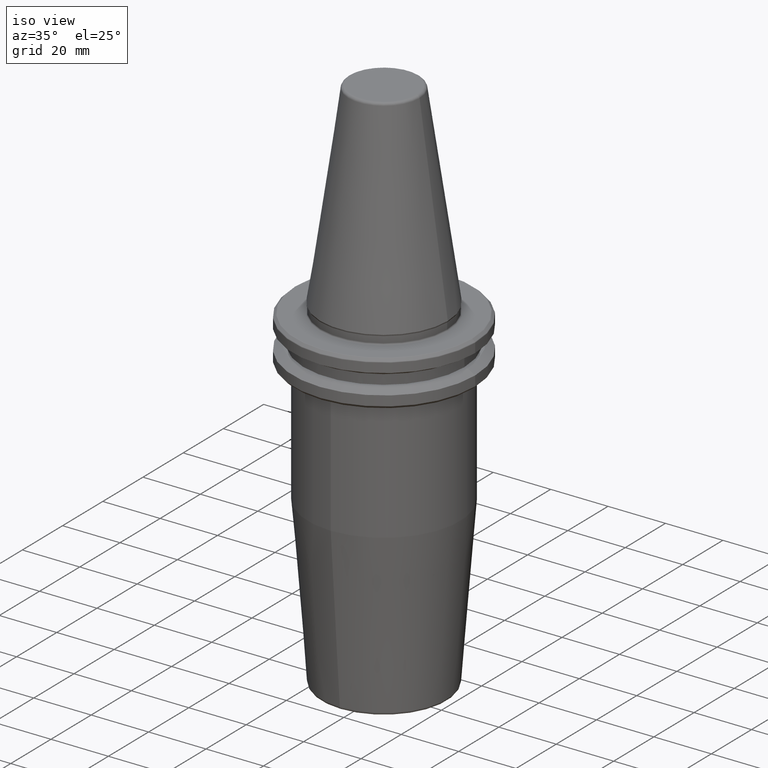
[diagram: clean part render]
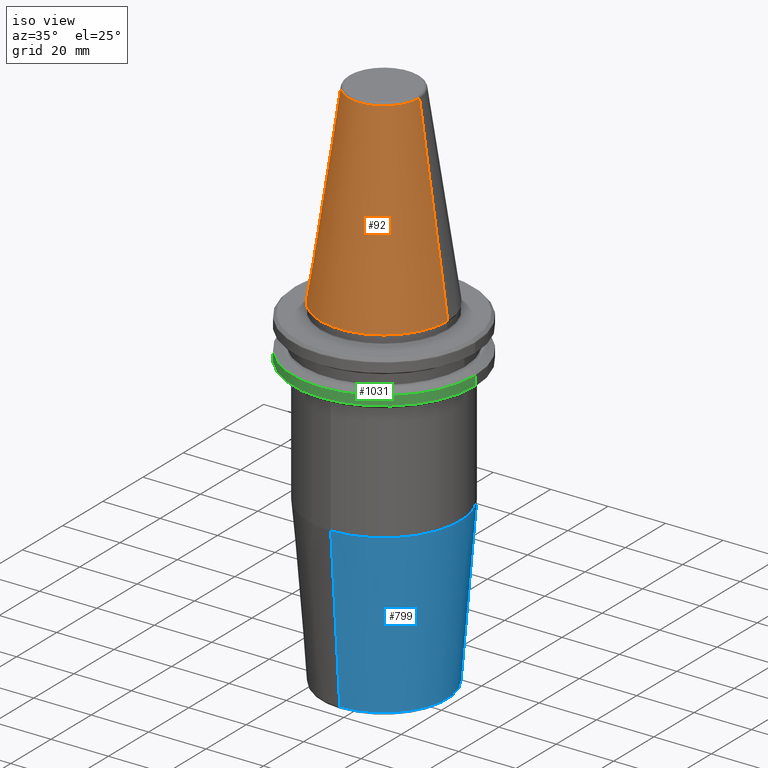
[diagram: same view with three faces highlighted in distinct colors, each labeled with its STEP entity id]
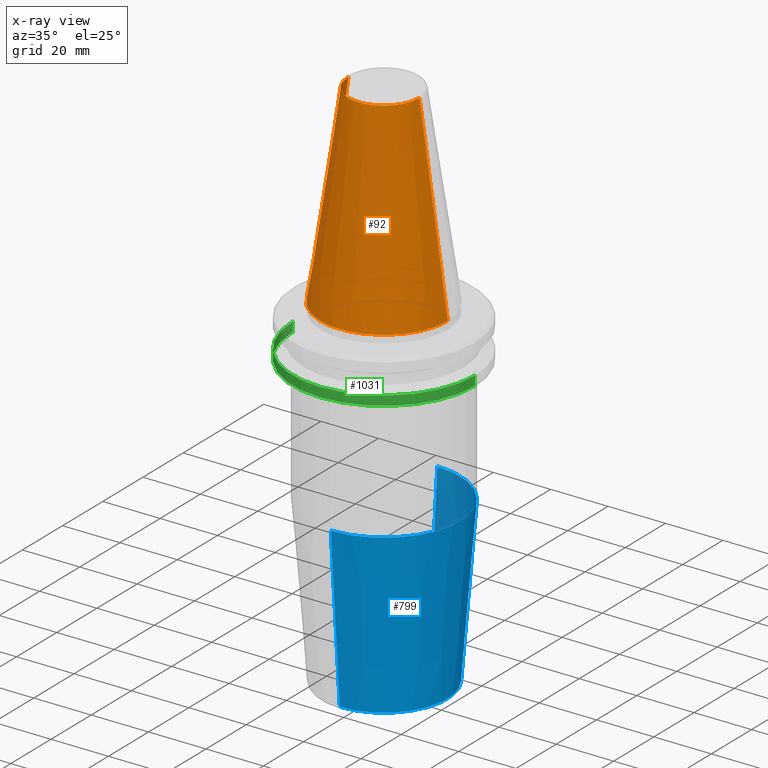
[diagram: x-ray of the same camera — body ghosted, the three highlighted faces saturated]
A machine part, iso view with three faces highlighted in distinct colors.
The next image is the same camera in x-ray (body ghosted, the three faces saturated) — at least one of them is partly hidden behind the body in this view.
Their STEP definitions:

[orange] entity #92 — the highlighted conical surface has half-angle 8.297 deg.
#43 = VERTEX_POINT ( 'NONE', #112 ) ;
#44 = CARTESIAN_POINT ( 'NONE',  ( 12.37469537611110800, 1.515463108277802100E-015, 67.54430822726729400 ) ) ;
#70 = DIRECTION ( 'NONE',  ( 1.000000000000000000, 0.0000000000000000000, 0.0000000000000000000 ) ) ;
#72 = EDGE_CURVE ( 'NONE', #43, #326, #867, .T. ) ;
#92 = ADVANCED_FACE ( 'NONE', ( #250 ), #214, .T. ) ;
#110 = DIRECTION ( 'NONE',  ( 0.1443082272673071000, 1.767266086135364600E-017, -0.9895327864921743500 ) ) ;
#112 = CARTESIAN_POINT ( 'NONE',  ( -22.22500000000000500, 2.721777511104993200E-015, 0.0000000000000000000 ) ) ;
#113 = EDGE_CURVE ( 'NONE', #951, #43, #491, .T. ) ;
#120 = ORIENTED_EDGE ( 'NONE', *, *, #113, .T. ) ;
#166 = EDGE_CURVE ( 'NONE', #1219, #326, #721, .T. ) ;
#191 = EDGE_LOOP ( 'NONE', ( #960, #607, #120, #563 ) ) ;
#214 = CONICAL_SURFACE ( 'NONE', #422, 12.37469537611110800, 0.1448138465474191100 ) ;
#240 = CARTESIAN_POINT ( 'NONE',  ( -12.37469537611110800, 0.0000000000000000000, 67.54430822726729400 ) ) ;
#250 = FACE_OUTER_BOUND ( 'NONE', #191, .T. ) ;
#252 = EDGE_CURVE ( 'NONE', #951, #1219, #868, .T. ) ;
#299 = AXIS2_PLACEMENT_3D ( 'NONE', #656, #717, #70 ) ;
#326 = VERTEX_POINT ( 'NONE', #399 ) ;
#399 = CARTESIAN_POINT ( 'NONE',  ( 22.22500000000000500, 0.0000000000000000000, 0.0000000000000000000 ) ) ;
#422 = AXIS2_PLACEMENT_3D ( 'NONE', #576, #773, #461 ) ;
#430 = CARTESIAN_POINT ( 'NONE',  ( -12.37469537611110800, 0.0000000000000000000, 67.54430822726729400 ) ) ;
#461 = DIRECTION ( 'NONE',  ( -1.000000000000000000, 0.0000000000000000000, 0.0000000000000000000 ) ) ;
#491 = LINE ( 'NONE', #430, #1201 ) ;
#531 = DIRECTION ( 'NONE',  ( -0.0000000000000000000, -0.0000000000000000000, 1.000000000000000000 ) ) ;
#563 = ORIENTED_EDGE ( 'NONE', *, *, #72, .T. ) ;
#576 = CARTESIAN_POINT ( 'NONE',  ( 0.0000000000000000000, 0.0000000000000000000, 67.54430822726729400 ) ) ;
#607 = ORIENTED_EDGE ( 'NONE', *, *, #252, .F. ) ;
#656 = CARTESIAN_POINT ( 'NONE',  ( 0.0000000000000000000, 0.0000000000000000000, 67.54430822726729400 ) ) ;
#717 = DIRECTION ( 'NONE',  ( -0.0000000000000000000, -0.0000000000000000000, 1.000000000000000000 ) ) ;
#721 = LINE ( 'NONE', #44, #948 ) ;
#765 = DIRECTION ( 'NONE',  ( 1.000000000000000000, 0.0000000000000000000, 0.0000000000000000000 ) ) ;
#773 = DIRECTION ( 'NONE',  ( 0.0000000000000000000, 0.0000000000000000000, -1.000000000000000000 ) ) ;
#823 = CARTESIAN_POINT ( 'NONE',  ( 0.0000000000000000000, 0.0000000000000000000, 0.0000000000000000000 ) ) ;
#834 = AXIS2_PLACEMENT_3D ( 'NONE', #823, #531, #765 ) ;
#867 = CIRCLE ( 'NONE', #834, 22.22500000000000500 ) ;
#868 = CIRCLE ( 'NONE', #299, 12.37469537611110800 ) ;
#926 = DIRECTION ( 'NONE',  ( -0.1443082272673071000, 0.0000000000000000000, -0.9895327864921743500 ) ) ;
#948 = VECTOR ( 'NONE', #110, 1000.000000000000000 ) ;
#951 = VERTEX_POINT ( 'NONE', #240 ) ;
#960 = ORIENTED_EDGE ( 'NONE', *, *, #166, .F. ) ;
#1057 = CARTESIAN_POINT ( 'NONE',  ( 12.37469537611110800, 2.118620309691397700E-015, 67.54430822726729400 ) ) ;
#1201 = VECTOR ( 'NONE', #926, 1000.000000000000000 ) ;
#1219 = VERTEX_POINT ( 'NONE', #1057 ) ;

[blue] entity #799 — the highlighted conical surface has half-angle 4.5 deg.
#59 = CONICAL_SURFACE ( 'NONE', #852, 21.99999999999999600, 0.07853981633973666800 ) ;
#86 = FACE_OUTER_BOUND ( 'NONE', #473, .T. ) ;
#136 = CARTESIAN_POINT ( 'NONE',  ( 2.694222958124176400E-015, -21.99999999999999300, -119.0784590957278200 ) ) ;
#141 = CARTESIAN_POINT ( 'NONE',  ( 2.694222958124176400E-015, 22.00000000000000000, -119.0784590957278200 ) ) ;
#143 = DIRECTION ( 'NONE',  ( 0.0000000000000000000, 1.000000000000000000, 0.0000000000000000000 ) ) ;
#221 = ORIENTED_EDGE ( 'NONE', *, *, #1207, .T. ) ;
#278 = DIRECTION ( 'NONE',  ( -0.0000000000000000000, 1.946757673717420000E-016, -1.000000000000000000 ) ) ;
#380 = VERTEX_POINT ( 'NONE', #1019 ) ;
#419 = CIRCLE ( 'NONE', #1258, 21.99999999999999600 ) ;
#429 = VECTOR ( 'NONE', #842, 1000.000000000000000 ) ;
#473 = EDGE_LOOP ( 'NONE', ( #921, #947, #221, #533 ) ) ;
#484 = AXIS2_PLACEMENT_3D ( 'NONE', #488, #1139, #577 ) ;
#488 = CARTESIAN_POINT ( 'NONE',  ( 0.0000000000000000000, -8.914585808034279600E-015, -61.90053778293550800 ) ) ;
#507 = EDGE_CURVE ( 'NONE', #380, #641, #419, .T. ) ;
#517 = DIRECTION ( 'NONE',  ( 0.0000000000000000000, -1.946757673717420000E-016, 1.000000000000000000 ) ) ;
#533 = ORIENTED_EDGE ( 'NONE', *, *, #670, .F. ) ;
#550 = VERTEX_POINT ( 'NONE', #622 ) ;
#577 = DIRECTION ( 'NONE',  ( 0.0000000000000000000, 1.000000000000000000, 2.618450529776311800E-016 ) ) ;
#581 = CARTESIAN_POINT ( 'NONE',  ( 3.245314017740487300E-015, 26.50000000000000400, -61.90053778293550100 ) ) ;
#622 = CARTESIAN_POINT ( 'NONE',  ( 0.0000000000000000000, -26.50000000000001800, -61.90053778293551500 ) ) ;
#641 = VERTEX_POINT ( 'NONE', #136 ) ;
#665 = VERTEX_POINT ( 'NONE', #581 ) ;
#668 = CARTESIAN_POINT ( 'NONE',  ( 0.0000000000000000000, 2.216569900254646700E-015, -119.0784590957278200 ) ) ;
#670 = EDGE_CURVE ( 'NONE', #641, #550, #945, .T. ) ;
#692 = LINE ( 'NONE', #141, #429 ) ;
#693 = DIRECTION ( 'NONE',  ( 0.0000000000000000000, -0.07845909572783700500, 0.9969173337331285200 ) ) ;
#694 = VECTOR ( 'NONE', #693, 1000.000000000000100 ) ;
#799 = ADVANCED_FACE ( 'NONE', ( #86 ), #59, .T. ) ;
#840 = CARTESIAN_POINT ( 'NONE',  ( 0.0000000000000000000, -21.99999999999999300, -119.0784590957278200 ) ) ;
#842 = DIRECTION ( 'NONE',  ( 9.608468044709112000E-018, 0.07845909572783661700, 0.9969173337331286300 ) ) ;
#852 = AXIS2_PLACEMENT_3D ( 'NONE', #1180, #517, #864 ) ;
#864 = DIRECTION ( 'NONE',  ( 0.0000000000000000000, -1.000000000000000000, 0.0000000000000000000 ) ) ;
#921 = ORIENTED_EDGE ( 'NONE', *, *, #507, .F. ) ;
#945 = LINE ( 'NONE', #840, #694 ) ;
#947 = ORIENTED_EDGE ( 'NONE', *, *, #1096, .T. ) ;
#1019 = CARTESIAN_POINT ( 'NONE',  ( 0.0000000000000000000, 22.00000000000000000, -119.0784590957278200 ) ) ;
#1073 = CIRCLE ( 'NONE', #484, 26.50000000000000700 ) ;
#1096 = EDGE_CURVE ( 'NONE', #380, #665, #692, .T. ) ;
#1139 = DIRECTION ( 'NONE',  ( -0.0000000000000000000, 1.946757673717420000E-016, -1.000000000000000000 ) ) ;
#1180 = CARTESIAN_POINT ( 'NONE',  ( 0.0000000000000000000, 2.216569900254646700E-015, -119.0784590957278200 ) ) ;
#1207 = EDGE_CURVE ( 'NONE', #665, #550, #1073, .T. ) ;
#1258 = AXIS2_PLACEMENT_3D ( 'NONE', #668, #278, #143 ) ;

[green] entity #1031 — the highlighted cylindrical surface (partial cylindrical patch) has radius 31.75 mm, axis along (-0, -0, 1).
#4 = ORIENTED_EDGE ( 'NONE', *, *, #535, .F. ) ;
#27 = DIRECTION ( 'NONE',  ( -0.0000000000000000000, -0.0000000000000000000, 1.000000000000000000 ) ) ;
#47 = DIRECTION ( 'NONE',  ( -0.0000000000000000000, -0.0000000000000000000, 1.000000000000000000 ) ) ;
#48 = DIRECTION ( 'NONE',  ( -0.0000000000000000000, -0.0000000000000000000, 1.000000000000000000 ) ) ;
#134 = CARTESIAN_POINT ( 'NONE',  ( 0.0000000000000000000, 0.0000000000000000000, -17.93431457505076300 ) ) ;
#159 = CIRCLE ( 'NONE', #263, 31.75000000000000000 ) ;
#226 = DIRECTION ( 'NONE',  ( -0.0000000000000000000, -0.0000000000000000000, 1.000000000000000000 ) ) ;
#263 = AXIS2_PLACEMENT_3D ( 'NONE', #134, #226, #332 ) ;
#276 = DIRECTION ( 'NONE',  ( -0.0000000000000000000, -0.0000000000000000000, 1.000000000000000000 ) ) ;
#332 = DIRECTION ( 'NONE',  ( 1.000000000000000000, 0.0000000000000000000, 0.0000000000000000000 ) ) ;
#394 = VECTOR ( 'NONE', #276, 1000.000000000000000 ) ;
#514 = EDGE_CURVE ( 'NONE', #720, #1136, #649, .T. ) ;
#535 = EDGE_CURVE ( 'NONE', #579, #1090, #1142, .T. ) ;
#558 = EDGE_LOOP ( 'NONE', ( #4, #1080, #635, #950 ) ) ;
#579 = VERTEX_POINT ( 'NONE', #986 ) ;
#635 = ORIENTED_EDGE ( 'NONE', *, *, #514, .T. ) ;
#642 = CARTESIAN_POINT ( 'NONE',  ( 0.0000000000000000000, 0.0000000000000000000, 113.5216080541959500 ) ) ;
#649 = LINE ( 'NONE', #690, #394 ) ;
#654 = CARTESIAN_POINT ( 'NONE',  ( 31.75000000000000000, 0.0000000000000000000, -14.62183664205671200 ) ) ;
#655 = CARTESIAN_POINT ( 'NONE',  ( 0.0000000000000000000, 0.0000000000000000000, -14.62183664205671200 ) ) ;
#690 = CARTESIAN_POINT ( 'NONE',  ( 31.75000000000000000, 0.0000000000000000000, 113.5216080541959500 ) ) ;
#695 = AXIS2_PLACEMENT_3D ( 'NONE', #642, #27, #1196 ) ;
#720 = VERTEX_POINT ( 'NONE', #989 ) ;
#734 = EDGE_CURVE ( 'NONE', #579, #720, #159, .T. ) ;
#750 = CARTESIAN_POINT ( 'NONE',  ( -31.75000000000000000, 3.888253587292846500E-015, 113.5216080541959500 ) ) ;
#755 = DIRECTION ( 'NONE',  ( 1.000000000000000000, 0.0000000000000000000, 0.0000000000000000000 ) ) ;
#883 = VECTOR ( 'NONE', #48, 1000.000000000000000 ) ;
#912 = CIRCLE ( 'NONE', #1129, 31.75000000000000000 ) ;
#950 = ORIENTED_EDGE ( 'NONE', *, *, #1137, .F. ) ;
#964 = FACE_OUTER_BOUND ( 'NONE', #558, .T. ) ;
#967 = CYLINDRICAL_SURFACE ( 'NONE', #695, 31.75000000000000000 ) ;
#986 = CARTESIAN_POINT ( 'NONE',  ( -31.75000000000000000, 3.888253587292846500E-015, -17.93431457505076300 ) ) ;
#989 = CARTESIAN_POINT ( 'NONE',  ( 31.75000000000000000, 0.0000000000000000000, -17.93431457505076300 ) ) ;
#1031 = ADVANCED_FACE ( 'NONE', ( #964 ), #967, .T. ) ;
#1080 = ORIENTED_EDGE ( 'NONE', *, *, #734, .T. ) ;
#1090 = VERTEX_POINT ( 'NONE', #1203 ) ;
#1129 = AXIS2_PLACEMENT_3D ( 'NONE', #655, #47, #755 ) ;
#1136 = VERTEX_POINT ( 'NONE', #654 ) ;
#1137 = EDGE_CURVE ( 'NONE', #1090, #1136, #912, .T. ) ;
#1142 = LINE ( 'NONE', #750, #883 ) ;
#1196 = DIRECTION ( 'NONE',  ( 1.000000000000000000, 0.0000000000000000000, 0.0000000000000000000 ) ) ;
#1203 = CARTESIAN_POINT ( 'NONE',  ( -31.75000000000000000, 3.888253587292846500E-015, -14.62183664205671200 ) ) ;